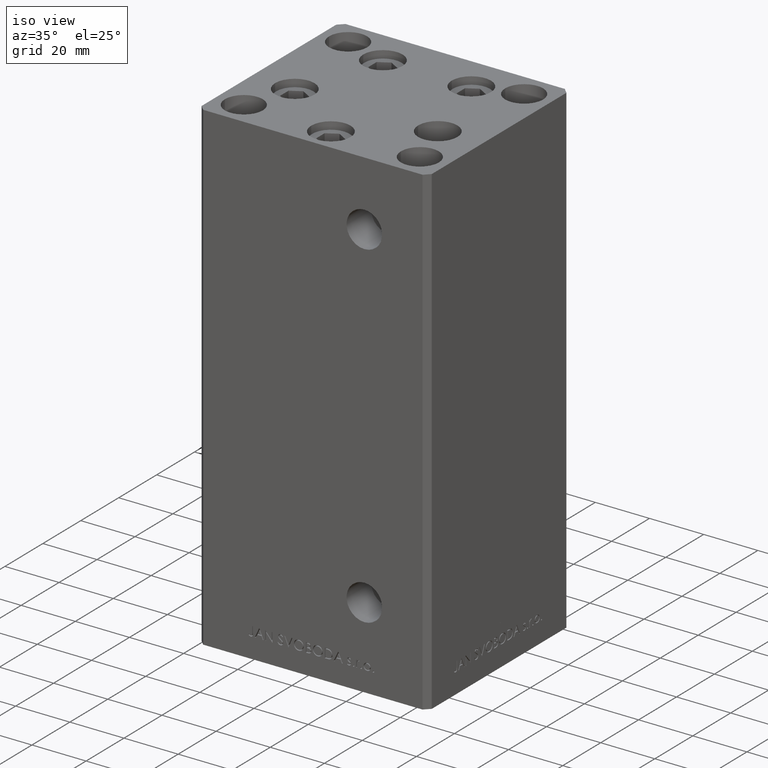
[diagram: clean part render]
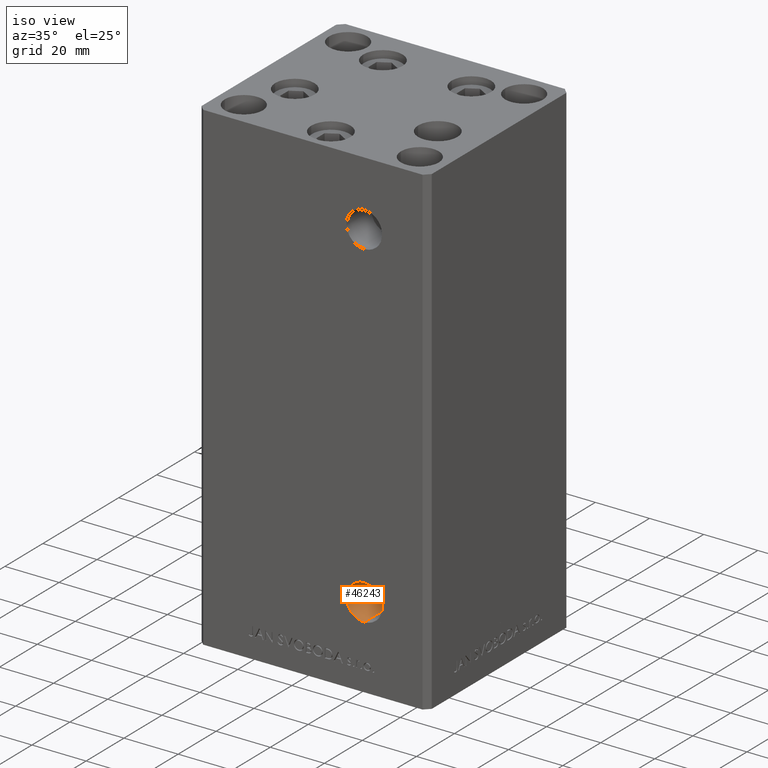
[diagram: same view with one face highlighted and labeled with its STEP entity id]
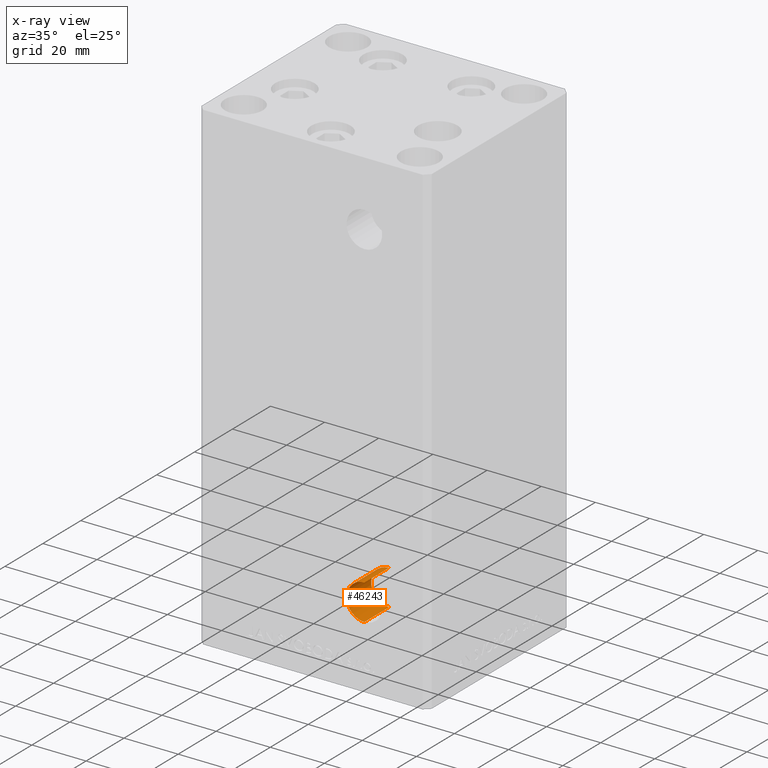
[diagram: x-ray of the same camera — body ghosted, the highlighted face saturated]
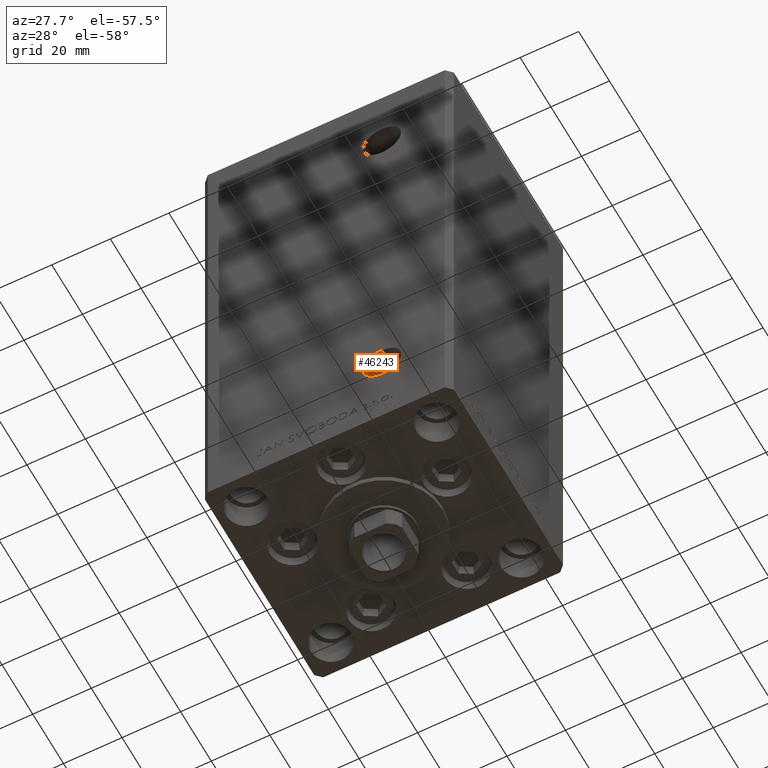
[diagram: same view with one face highlighted and labeled with its STEP entity id]
A machine part, iso view. The second image highlights one B-rep face of the part: STEP entity #46243.
The next image is the same camera in x-ray: the body ghosted, the highlighted face saturated — about 0% of this face is hidden behind the body in this view.
A second angle (auxiliary view) of the same face is appended — the face is thin or edge-on in the first view.
In plain terms, the highlighted cylindrical surface (edge-blend (fillet) strip) has radius 6.58 mm, axis along (-0, -1, -0).
Its self-contained STEP definition (entity closure, byte-faithful):
#1326 = CYLINDRICAL_SURFACE ( 'NONE', #23943, 6.579999999999999183 ) ;
#1582 = CARTESIAN_POINT ( 'NONE',  ( 18.99999999999998934, -24.50000000000000711, 14.99999999999998579 ) ) ;
#2328 = DIRECTION ( 'NONE',  ( -0.000000000000000000, -1.000000000000000000, -0.000000000000000000 ) ) ;
#2355 = AXIS2_PLACEMENT_3D ( 'NONE', #28119, #40413, #16530 ) ;
#7476 = CARTESIAN_POINT ( 'NONE',  ( 18.99999999999998934, -24.50000000000000711, 14.99999999999998579 ) ) ;
#7752 = VECTOR ( 'NONE', #35100, 1000.000000000000000 ) ;
#8962 = AXIS2_PLACEMENT_3D ( 'NONE', #7476, #11740, #11253 ) ;
#9743 = CIRCLE ( 'NONE', #8962, 6.579999999999999183 ) ;
#11253 = DIRECTION ( 'NONE',  ( 0.000000000000000000, 0.000000000000000000, -1.000000000000000000 ) ) ;
#11740 = DIRECTION ( 'NONE',  ( 0.000000000000000000, -1.000000000000000000, 0.000000000000000000 ) ) ;
#13402 = ORIENTED_EDGE ( 'NONE', *, *, #16897, .T. ) ;
#16507 = VERTEX_POINT ( 'NONE', #41270 ) ;
#16530 = DIRECTION ( 'NONE',  ( 0.000000000000000000, 0.000000000000000000, -1.000000000000000000 ) ) ;
#16897 = EDGE_CURVE ( 'NONE', #16507, #46826, #31634, .T. ) ;
#19204 = CARTESIAN_POINT ( 'NONE',  ( 18.99999999999998934, -24.50000000000000711, 8.419999999999985718 ) ) ;
#19764 = CARTESIAN_POINT ( 'NONE',  ( 18.99999999999998934, -24.50000000000000711, 8.419999999999985718 ) ) ;
#21001 = EDGE_CURVE ( 'NONE', #46826, #41971, #24026, .T. ) ;
#22311 = VECTOR ( 'NONE', #27376, 1000.000000000000000 ) ;
#23943 = AXIS2_PLACEMENT_3D ( 'NONE', #1582, #2328, #44047 ) ;
#24026 = CIRCLE ( 'NONE', #2355, 6.579999999999999183 ) ;
#24090 = CARTESIAN_POINT ( 'NONE',  ( 18.99999999999998934, -24.50000000000000711, 21.57999999999998408 ) ) ;
#26917 = ORIENTED_EDGE ( 'NONE', *, *, #40403, .F. ) ;
#27376 = DIRECTION ( 'NONE',  ( -0.000000000000000000, -1.000000000000000000, -0.000000000000000000 ) ) ;
#28119 = CARTESIAN_POINT ( 'NONE',  ( 18.99999999999998934, -37.50000000000000711, 14.99999999999998579 ) ) ;
#29647 = EDGE_CURVE ( 'NONE', #16507, #34343, #9743, .T. ) ;
#31634 = LINE ( 'NONE', #24090, #22311 ) ;
#34152 = CARTESIAN_POINT ( 'NONE',  ( 18.99999999999998934, -37.50000000000000711, 8.419999999999985718 ) ) ;
#34343 = VERTEX_POINT ( 'NONE', #19204 ) ;
#35100 = DIRECTION ( 'NONE',  ( -0.000000000000000000, -1.000000000000000000, -0.000000000000000000 ) ) ;
#38218 = ORIENTED_EDGE ( 'NONE', *, *, #29647, .F. ) ;
#40403 = EDGE_CURVE ( 'NONE', #34343, #41971, #42645, .T. ) ;
#40413 = DIRECTION ( 'NONE',  ( 0.000000000000000000, -1.000000000000000000, 0.000000000000000000 ) ) ;
#41270 = CARTESIAN_POINT ( 'NONE',  ( 18.99999999999998934, -24.50000000000000711, 21.57999999999998408 ) ) ;
#41789 = EDGE_LOOP ( 'NONE', ( #38218, #13402, #49310, #26917 ) ) ;
#41971 = VERTEX_POINT ( 'NONE', #34152 ) ;
#42645 = LINE ( 'NONE', #19764, #7752 ) ;
#43437 = CARTESIAN_POINT ( 'NONE',  ( 18.99999999999998934, -37.50000000000000711, 21.57999999999998408 ) ) ;
#44047 = DIRECTION ( 'NONE',  ( 0.000000000000000000, 0.000000000000000000, -1.000000000000000000 ) ) ;
#44293 = FACE_OUTER_BOUND ( 'NONE', #41789, .T. ) ;
#46243 = ADVANCED_FACE ( 'NONE', ( #44293 ), #1326, .F. ) ;
#46826 = VERTEX_POINT ( 'NONE', #43437 ) ;
#49310 = ORIENTED_EDGE ( 'NONE', *, *, #21001, .T. ) ;